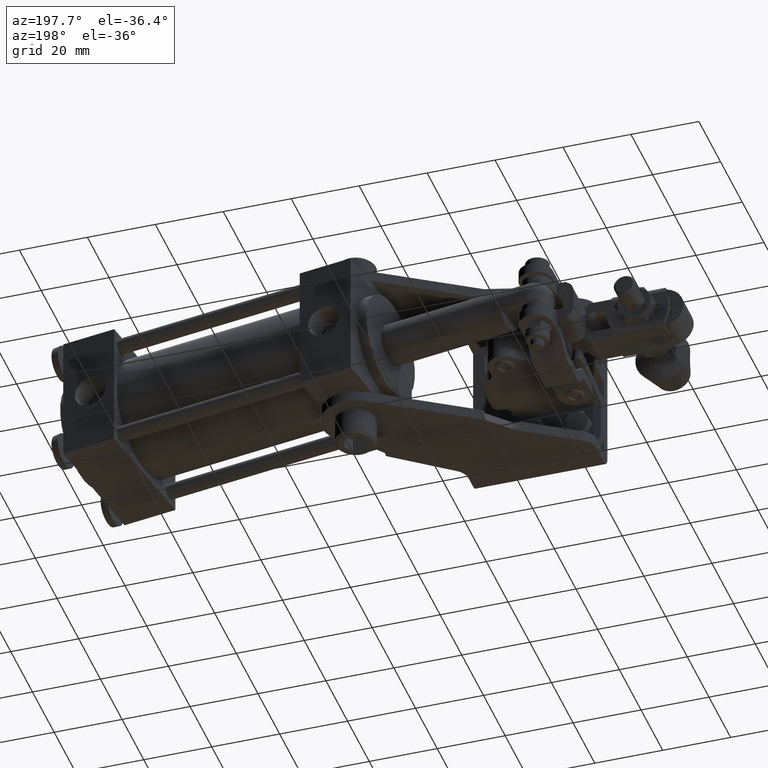
[diagram: clean part render]
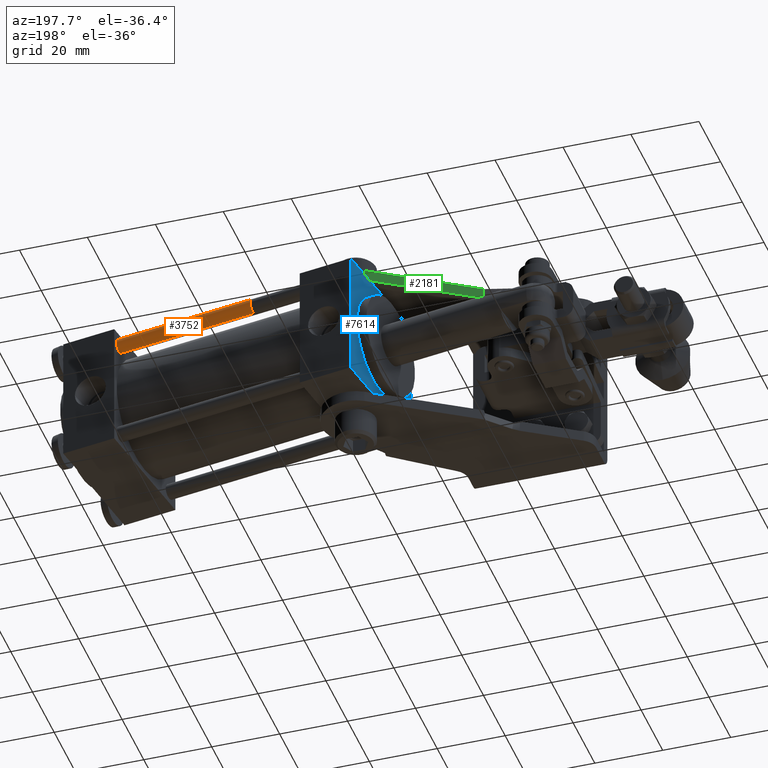
[diagram: same view with three faces highlighted in distinct colors, each labeled with its STEP entity id]
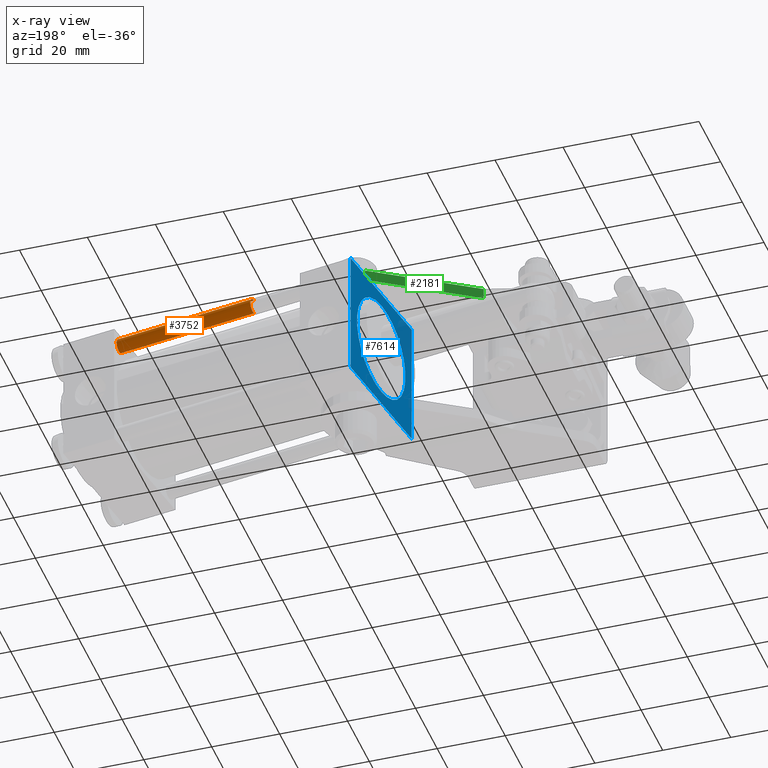
[diagram: x-ray of the same camera — body ghosted, the three highlighted faces saturated]
A machine part, auxiliary view with three faces highlighted in distinct colors.
The next image is the same camera in x-ray (body ghosted, the three faces saturated) — at least one of them is partly hidden behind the body in this view.
Their STEP definitions:

[orange] entity #3752 — the highlighted cylindrical surface (edge-blend (fillet) strip) has radius 2.25 mm, axis along (0.9874, -0.1585, -0).
#1624 = ORIENTED_EDGE ( 'NONE', *, *, #30188, .F. ) ;
#1718 = CIRCLE ( 'NONE', #26919, 2.250000000000000000 ) ;
#1890 = CARTESIAN_POINT ( 'NONE',  ( 45.71078502113238800, 51.20439242135762500, 12.99999999999971600 ) ) ;
#1994 = CARTESIAN_POINT ( 'NONE',  ( 132.1037343580997000, 37.33166440128715600, 12.99999999999970500 ) ) ;
#2680 = DIRECTION ( 'NONE',  ( 0.0000000000000000000, -3.083952846180989700E-015, -1.000000000000000000 ) ) ;
#2744 = CARTESIAN_POINT ( 'NONE',  ( 132.1037343580997000, 37.33166440128716300, 15.24999999999970500 ) ) ;
#3072 = VECTOR ( 'NONE', #12852, 1000.000000000000100 ) ;
#3318 = ORIENTED_EDGE ( 'NONE', *, *, #12058, .T. ) ;
#3752 = ADVANCED_FACE ( 'NONE', ( #24966 ), #5933, .T. ) ;
#3808 = ORIENTED_EDGE ( 'NONE', *, *, #8409, .F. ) ;
#4428 = VECTOR ( 'NONE', #23512, 1000.000000000000100 ) ;
#5933 = CYLINDRICAL_SURFACE ( 'NONE', #19183, 2.250000000000000400 ) ;
#6743 = CARTESIAN_POINT ( 'NONE',  ( 45.71078502113238800, 51.20439242135764600, 17.49999999999971200 ) ) ;
#7364 = CARTESIAN_POINT ( 'NONE',  ( 45.71078502113239500, 51.20439242135763200, 15.24999999999971800 ) ) ;
#7762 = DIRECTION ( 'NONE',  ( 0.9873515853984645700, -0.1585460400361314000, -1.306212789964209000E-016 ) ) ;
#8071 = VERTEX_POINT ( 'NONE', #26650 ) ;
#8409 = EDGE_CURVE ( 'NONE', #8071, #30990, #1718, .T. ) ;
#10720 = DIRECTION ( 'NONE',  ( 0.9873515853984646800, -0.1585460400361313200, -1.306212789964704800E-016 ) ) ;
#10729 = LINE ( 'NONE', #1994, #4428 ) ;
#12058 = EDGE_CURVE ( 'NONE', #19910, #25069, #22721, .T. ) ;
#12852 = DIRECTION ( 'NONE',  ( 0.9873515853984645700, -0.1585460400361313200, -1.306212789964704800E-016 ) ) ;
#13431 = DIRECTION ( 'NONE',  ( -0.1585460400361288800, -0.9873515853984647900, 0.0000000000000000000 ) ) ;
#13507 = DIRECTION ( 'NONE',  ( 0.9873515853984646800, -0.1585460400361313200, -1.306212789964704800E-016 ) ) ;
#18523 = DIRECTION ( 'NONE',  ( 0.0000000000000000000, 6.167905692361979400E-015, 1.000000000000000000 ) ) ;
#19183 = AXIS2_PLACEMENT_3D ( 'NONE', #2744, #13507, #2680 ) ;
#19910 = VERTEX_POINT ( 'NONE', #1890 ) ;
#22721 = CIRCLE ( 'NONE', #22819, 2.250000000000000400 ) ;
#22819 = AXIS2_PLACEMENT_3D ( 'NONE', #7364, #10720, #18523 ) ;
#23512 = DIRECTION ( 'NONE',  ( 0.9873515853984645700, -0.1585460400361313200, -1.306212789964704800E-016 ) ) ;
#24391 = LINE ( 'NONE', #24884, #3072 ) ;
#24884 = CARTESIAN_POINT ( 'NONE',  ( 132.1037343580997000, 37.33166440128717800, 17.49999999999970200 ) ) ;
#24966 = FACE_OUTER_BOUND ( 'NONE', #30468, .T. ) ;
#25069 = VERTEX_POINT ( 'NONE', #6743 ) ;
#25378 = ORIENTED_EDGE ( 'NONE', *, *, #28955, .T. ) ;
#26650 = CARTESIAN_POINT ( 'NONE',  ( 87.17923722247030600, 44.54550922293101000, 12.99999999999971000 ) ) ;
#26653 = CARTESIAN_POINT ( 'NONE',  ( 87.17923722247030600, 44.54550922293103100, 17.49999999999970900 ) ) ;
#26919 = AXIS2_PLACEMENT_3D ( 'NONE', #28752, #7762, #13431 ) ;
#28752 = CARTESIAN_POINT ( 'NONE',  ( 87.17923722247030600, 44.54550922293101700, 15.24999999999971000 ) ) ;
#28955 = EDGE_CURVE ( 'NONE', #25069, #30990, #24391, .T. ) ;
#30188 = EDGE_CURVE ( 'NONE', #19910, #8071, #10729, .T. ) ;
#30468 = EDGE_LOOP ( 'NONE', ( #3318, #25378, #3808, #1624 ) ) ;
#30990 = VERTEX_POINT ( 'NONE', #26653 ) ;

[blue] entity #7614 — the highlighted planar face has unit normal (-0.9874, 0.1585, 0).
#1369 = VERTEX_POINT ( 'NONE', #14735 ) ;
#1742 = FACE_BOUND ( 'NONE', #13825, .T. ) ;
#2277 = ORIENTED_EDGE ( 'NONE', *, *, #18288, .T. ) ;
#2553 = VERTEX_POINT ( 'NONE', #16109 ) ;
#3339 = EDGE_CURVE ( 'NONE', #2553, #23127, #27932, .T. ) ;
#4095 = ORIENTED_EDGE ( 'NONE', *, *, #16064, .T. ) ;
#4612 = CARTESIAN_POINT ( 'NONE',  ( 14.41356207749910600, 60.02804844285989100, 19.00000000000000000 ) ) ;
#5321 = CARTESIAN_POINT ( 'NONE',  ( 16.10325083318415200, 70.55065040362406100, 1.564929167301925400E-015 ) ) ;
#5634 = CARTESIAN_POINT ( 'NONE',  ( 14.41356207749910300, 60.02804844285989800, -19.00000000000000000 ) ) ;
#5698 = DIRECTION ( 'NONE',  ( 1.156482317317871500E-016, 0.0000000000000000000, 1.000000000000000000 ) ) ;
#7614 = ADVANCED_FACE ( 'NONE', ( #1742, #14489 ), #14611, .T. ) ;
#7702 = VECTOR ( 'NONE', #20448, 999.9999999999998900 ) ;
#8004 = DIRECTION ( 'NONE',  ( -0.1585460400361315100, -0.9873515853984646800, -9.617384562591315900E-017 ) ) ;
#8106 = AXIS2_PLACEMENT_3D ( 'NONE', #30888, #15154, #5698 ) ;
#8408 = LINE ( 'NONE', #10925, #7702 ) ;
#10925 = CARTESIAN_POINT ( 'NONE',  ( 14.41356207749910600, 60.02804844285989100, 19.00000000000000000 ) ) ;
#10949 = AXIS2_PLACEMENT_3D ( 'NONE', #27985, #13670, #30369 ) ;
#12268 = VECTOR ( 'NONE', #15548, 1000.000000000000000 ) ;
#12741 = CARTESIAN_POINT ( 'NONE',  ( 8.388812556126110200, 22.50868819771823900, 18.99999999999998900 ) ) ;
#13188 = VECTOR ( 'NONE', #8004, 999.9999999999998900 ) ;
#13242 = EDGE_CURVE ( 'NONE', #20871, #1369, #18650, .T. ) ;
#13310 = LINE ( 'NONE', #12741, #24560 ) ;
#13670 = DIRECTION ( 'NONE',  ( -0.9873515853984645700, 0.1585460400361315100, 1.306212789964399600E-016 ) ) ;
#13805 = VERTEX_POINT ( 'NONE', #27936 ) ;
#13825 = EDGE_LOOP ( 'NONE', ( #26336, #19398 ) ) ;
#14273 = AXIS2_PLACEMENT_3D ( 'NONE', #5321, #26213, #25999 ) ;
#14489 = FACE_OUTER_BOUND ( 'NONE', #25892, .T. ) ;
#14575 = ORIENTED_EDGE ( 'NONE', *, *, #13242, .T. ) ;
#14611 = PLANE ( 'NONE',  #14273 ) ;
#14735 = CARTESIAN_POINT ( 'NONE',  ( 14.41356207749910300, 60.02804844285989800, -19.00000000000000000 ) ) ;
#15154 = DIRECTION ( 'NONE',  ( -0.9873515853984645700, 0.1585460400361315100, 1.306212789964399600E-016 ) ) ;
#15548 = DIRECTION ( 'NONE',  ( -1.137211445248753800E-016, 1.156668854819529800E-016, -1.000000000000000000 ) ) ;
#16064 = EDGE_CURVE ( 'NONE', #13805, #20871, #8408, .T. ) ;
#16109 = CARTESIAN_POINT ( 'NONE',  ( 11.40118731681260500, 41.26836832028906300, -15.00000000000000000 ) ) ;
#16695 = EDGE_CURVE ( 'NONE', #23127, #2553, #27428, .T. ) ;
#18288 = EDGE_CURVE ( 'NONE', #23680, #13805, #13310, .T. ) ;
#18650 = LINE ( 'NONE', #25970, #12268 ) ;
#19398 = ORIENTED_EDGE ( 'NONE', *, *, #3339, .F. ) ;
#20448 = DIRECTION ( 'NONE',  ( 0.1585460400361315100, 0.9873515853984646800, 2.787763167813665900E-016 ) ) ;
#20871 = VERTEX_POINT ( 'NONE', #4612 ) ;
#22823 = CARTESIAN_POINT ( 'NONE',  ( 11.40118731681260800, 41.26836832028906300, 15.00000000000000000 ) ) ;
#23127 = VERTEX_POINT ( 'NONE', #22823 ) ;
#23461 = EDGE_CURVE ( 'NONE', #1369, #23680, #26667, .T. ) ;
#23680 = VERTEX_POINT ( 'NONE', #28215 ) ;
#24560 = VECTOR ( 'NONE', #29458, 1000.000000000000000 ) ;
#25892 = EDGE_LOOP ( 'NONE', ( #4095, #14575, #30787, #2277 ) ) ;
#25970 = CARTESIAN_POINT ( 'NONE',  ( 14.41356207749910600, 60.02804844285989100, 19.00000000000000000 ) ) ;
#25999 = DIRECTION ( 'NONE',  ( 1.281965938761299000E-016, -2.552046578544581200E-017, 1.000000000000000000 ) ) ;
#26213 = DIRECTION ( 'NONE',  ( -0.9873515853984645700, 0.1585460400361315100, 1.306212789964399800E-016 ) ) ;
#26336 = ORIENTED_EDGE ( 'NONE', *, *, #16695, .F. ) ;
#26667 = LINE ( 'NONE', #5634, #13188 ) ;
#27428 = CIRCLE ( 'NONE', #10949, 15.00000000000000000 ) ;
#27932 = CIRCLE ( 'NONE', #8106, 15.00000000000000000 ) ;
#27936 = CARTESIAN_POINT ( 'NONE',  ( 8.388812556126110200, 22.50868819771823900, 18.99999999999998900 ) ) ;
#27985 = CARTESIAN_POINT ( 'NONE',  ( 11.40118731681260800, 41.26836832028906300, 1.420420216262456600E-015 ) ) ;
#28215 = CARTESIAN_POINT ( 'NONE',  ( 8.388812556126106700, 22.50868819771824300, -19.00000000000000400 ) ) ;
#29458 = DIRECTION ( 'NONE',  ( 1.137211445248753600E-016, -1.156668854819529800E-016, 1.000000000000000000 ) ) ;
#30369 = DIRECTION ( 'NONE',  ( 1.156482317317871500E-016, 0.0000000000000000000, 1.000000000000000000 ) ) ;
#30787 = ORIENTED_EDGE ( 'NONE', *, *, #23461, .T. ) ;
#30888 = CARTESIAN_POINT ( 'NONE',  ( 11.40118731681260800, 41.26836832028906300, 1.420420216262456600E-015 ) ) ;

[green] entity #2181 — the highlighted planar face has unit normal (0.5352, -0.8447, 0).
#968 = LINE ( 'NONE', #4046, #7394 ) ;
#1534 = LINE ( 'NONE', #25900, #26266 ) ;
#1588 = DIRECTION ( 'NONE',  ( -0.0000000000000000000, 3.469446951953614200E-016, 1.000000000000000000 ) ) ;
#1771 = ORIENTED_EDGE ( 'NONE', *, *, #7885, .F. ) ;
#2054 = FACE_OUTER_BOUND ( 'NONE', #27338, .T. ) ;
#2181 = ADVANCED_FACE ( 'NONE', ( #2054 ), #10874, .F. ) ;
#2859 = ORIENTED_EDGE ( 'NONE', *, *, #5924, .F. ) ;
#4046 = CARTESIAN_POINT ( 'NONE',  ( -15.16509333617901200, 30.00192582403566600, 19.49999999999999600 ) ) ;
#5615 = DIRECTION ( 'NONE',  ( 0.5351977698079776200, -0.8447267884899633000, 2.930734781560068800E-016 ) ) ;
#5924 = EDGE_CURVE ( 'NONE', #28839, #21704, #28044, .T. ) ;
#7071 = DIRECTION ( 'NONE',  ( -0.8447267884899631900, -0.5351977698079775100, 1.856840271152659400E-016 ) ) ;
#7099 = VERTEX_POINT ( 'NONE', #20757 ) ;
#7394 = VECTOR ( 'NONE', #1588, 1000.000000000000000 ) ;
#7885 = EDGE_CURVE ( 'NONE', #21704, #23071, #8493, .T. ) ;
#8493 = LINE ( 'NONE', #10453, #21254 ) ;
#9741 = VECTOR ( 'NONE', #10952, 1000.000000000000000 ) ;
#10453 = CARTESIAN_POINT ( 'NONE',  ( 34.66686921616032900, 61.57421119081322300, 22.69999999999998900 ) ) ;
#10536 = EDGE_CURVE ( 'NONE', #28839, #7099, #1534, .T. ) ;
#10874 = PLANE ( 'NONE',  #18291 ) ;
#10952 = DIRECTION ( 'NONE',  ( -0.0000000000000000000, 3.469446951953614200E-016, 1.000000000000000000 ) ) ;
#13564 = EDGE_CURVE ( 'NONE', #7099, #23071, #968, .T. ) ;
#15092 = CARTESIAN_POINT ( 'NONE',  ( 13.94802230192021900, 48.44726788489963800, 19.49999999999999300 ) ) ;
#15502 = DIRECTION ( 'NONE',  ( -0.8447267884899631900, -0.5351977698079775100, 1.856840271152659400E-016 ) ) ;
#15544 = CARTESIAN_POINT ( 'NONE',  ( -15.16509333617899800, 30.00192582403566300, 22.70000000000000300 ) ) ;
#17438 = CARTESIAN_POINT ( 'NONE',  ( 13.94802230192021900, 48.44726788489963800, 19.49999999999999300 ) ) ;
#17771 = ORIENTED_EDGE ( 'NONE', *, *, #13564, .T. ) ;
#18291 = AXIS2_PLACEMENT_3D ( 'NONE', #28962, #5615, #15502 ) ;
#20536 = DIRECTION ( 'NONE',  ( -0.8447267884899631900, -0.5351977698079775100, 1.856840271152659400E-016 ) ) ;
#20757 = CARTESIAN_POINT ( 'NONE',  ( -15.16509333617901200, 30.00192582403566600, 19.49999999999999600 ) ) ;
#21254 = VECTOR ( 'NONE', #7071, 1000.000000000000100 ) ;
#21704 = VERTEX_POINT ( 'NONE', #23779 ) ;
#22774 = ORIENTED_EDGE ( 'NONE', *, *, #10536, .T. ) ;
#23071 = VERTEX_POINT ( 'NONE', #15544 ) ;
#23779 = CARTESIAN_POINT ( 'NONE',  ( 13.94802230192022600, 48.44726788489963800, 22.69999999999999200 ) ) ;
#25900 = CARTESIAN_POINT ( 'NONE',  ( 34.66686921616032900, 61.57421119081322300, 19.49999999999998600 ) ) ;
#26266 = VECTOR ( 'NONE', #20536, 1000.000000000000100 ) ;
#27338 = EDGE_LOOP ( 'NONE', ( #22774, #17771, #1771, #2859 ) ) ;
#28044 = LINE ( 'NONE', #15092, #9741 ) ;
#28839 = VERTEX_POINT ( 'NONE', #17438 ) ;
#28962 = CARTESIAN_POINT ( 'NONE',  ( 34.66686921616032900, 61.57421119081322300, 19.49999999999998600 ) ) ;